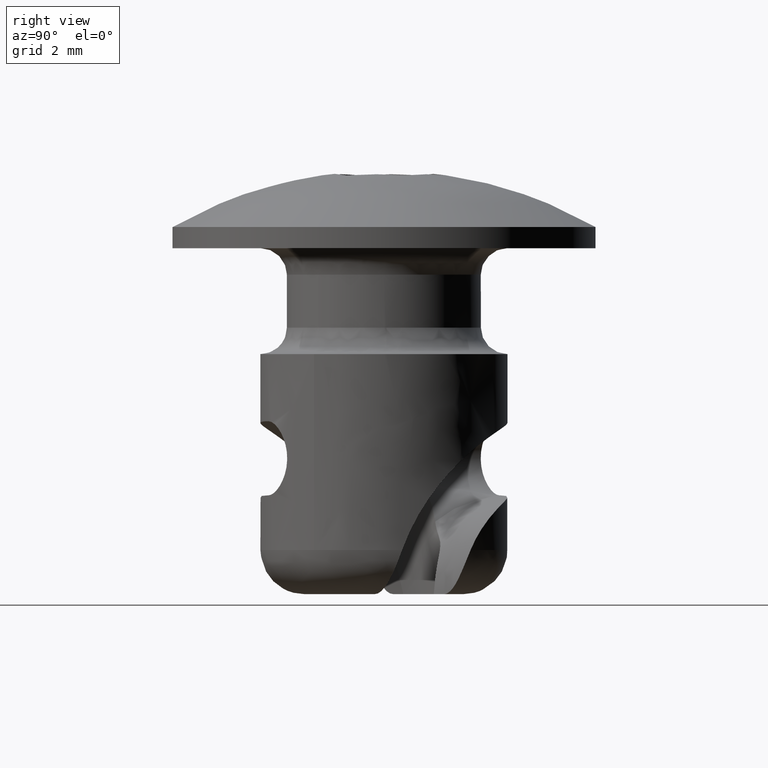
[diagram: clean part render]
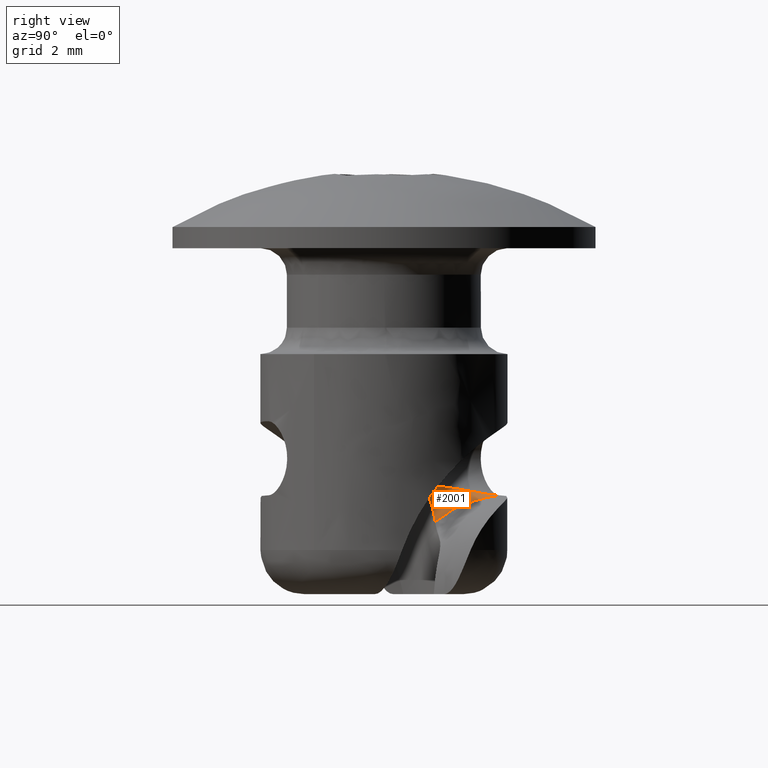
[diagram: same view with one face highlighted and labeled with its STEP entity id]
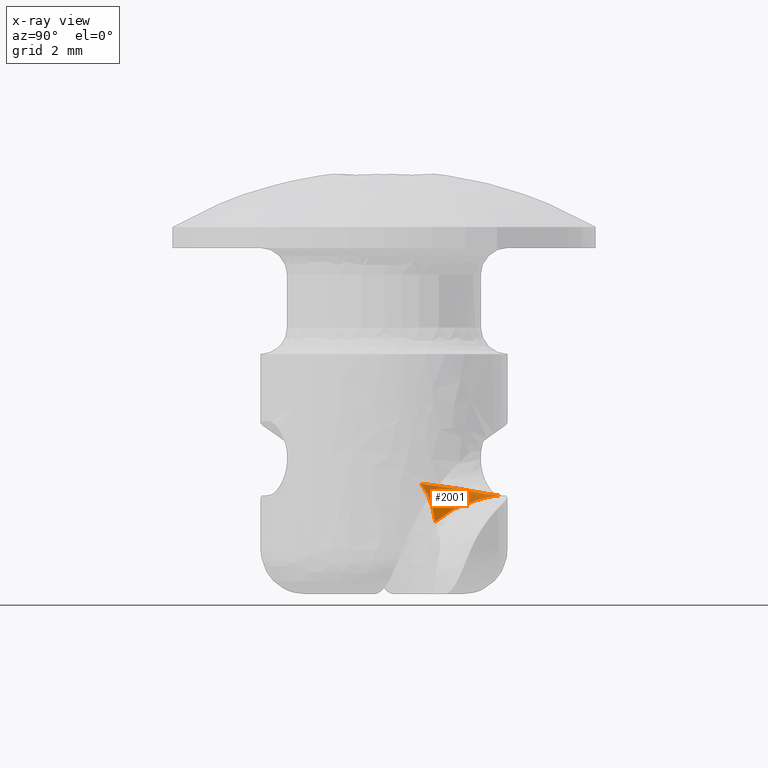
[diagram: x-ray of the same camera — body ghosted, the highlighted face saturated]
A machine part, right view. The second image highlights one B-rep face of the part: STEP entity #2001.
The next image is the same camera in x-ray: the body ghosted, the highlighted face saturated — about 10% of this face is hidden behind the body in this view.
In plain terms, the highlighted face is a freeform B-spline surface patch.
Its self-contained STEP definition (entity closure, byte-faithful):
#855=CARTESIAN_POINT('',(-0.672045298153660,1.451516563494296,-1.488970038982920));
#856=VERTEX_POINT('',#855);
#872=CARTESIAN_POINT('',(-1.212232091363172,1.044256353283640,-0.420718729356689));
#873=VERTEX_POINT('',#872);
#874=CARTESIAN_POINT('',(-0.672045298153660,1.451516563494296,-1.488970038982920));
#875=CARTESIAN_POINT('',(-0.685914227049318,1.445126067576757,-1.438556057472424));
#876=CARTESIAN_POINT('',(-0.716568376618162,1.430522021718328,-1.338916273838315));
#877=CARTESIAN_POINT('',(-0.770683985319542,1.402348551928514,-1.193377421310787));
#878=CARTESIAN_POINT('',(-0.832232117489249,1.366990956004324,-1.052320882063158));
#879=CARTESIAN_POINT('',(-0.900376026099111,1.323380838419215,-0.915845357115463));
#880=CARTESIAN_POINT('',(-0.974142754802714,1.270434115568713,-0.783914843066599));
#881=CARTESIAN_POINT('',(-1.052231645397192,1.206699727998528,-0.656698493933126));
#882=CARTESIAN_POINT('',(-1.132733177206144,1.132590003345547,-0.534578573007747));
#883=CARTESIAN_POINT('',(-1.185763895879432,1.073707062390380,-0.458608693711601));
#884=CARTESIAN_POINT('',(-1.212232091363172,1.044256353283640,-0.420718729356689));
#885=B_SPLINE_CURVE_WITH_KNOTS('',3,(#874,#875,#876,#877,#878,#879,#880,#881,#882,#883,#884),.UNSPECIFIED.,.F.,.U.,(4,1,1,1,1,1,1,1,4),(0.274487328514492,0.363590741908287,0.452425215500818,0.541266122305212,0.630535087466628,0.720647627196083,0.812007636217323,0.905002633807965,0.997706322431940),.UNSPECIFIED.);
#886=EDGE_CURVE('',#856,#873,#885,.T.);
#1090=CARTESIAN_POINT('',(-1.254288169733266,3.267531359792745,-0.743592999981045));
#1091=VERTEX_POINT('',#1090);
#1878=CARTESIAN_POINT('',(-0.672045298153660,1.451516563494296,-1.488970038982920));
#1879=CARTESIAN_POINT('',(-0.725018043586687,1.552880658211166,-1.409784171524347));
#1880=CARTESIAN_POINT('',(-0.810467332279812,1.716394895105065,-1.282067043244677));
#1881=CARTESIAN_POINT('',(-0.956720208116708,2.010279962952098,-1.102084542620141));
#1882=CARTESIAN_POINT('',(-1.100326551789266,2.357860284912444,-0.960042492175931));
#1883=CARTESIAN_POINT('',(-1.224037228723689,2.725527066451301,-0.844821912291983));
#1884=CARTESIAN_POINT('',(-1.276216384680858,3.008782386900770,-0.782431099786881));
#1885=CARTESIAN_POINT('',(-1.270817524979516,3.150823606796437,-0.761042154085632));
#1886=CARTESIAN_POINT('',(-1.263362547465741,3.212095274328525,-0.752013525163471));
#1887=CARTESIAN_POINT('',(-1.258392042728098,3.244371889486915,-0.747180575360182));
#1888=CARTESIAN_POINT('',(-1.255639688768302,3.259904304813440,-0.744774487912235));
#1889=CARTESIAN_POINT('',(-1.254288169733266,3.267531359792745,-0.743592999981045));
#1890=B_SPLINE_CURVE_WITH_KNOTS('',3,(#1878,#1879,#1880,#1881,#1882,#1883,#1884,#1885,#1886,#1887,#1888,#1889),.UNSPECIFIED.,.F.,.U.,(4,1,1,1,1,1,1,1,1,4),(0.000222147818129,0.199149641913625,0.321102078283582,0.534788884893557,0.772165064136862,0.899520041314767,0.952758658860349,0.977163544495235,0.988786360781260,1.0),.UNSPECIFIED.);
#1891=EDGE_CURVE('',#856,#1091,#1890,.T.);
#1897=CARTESIAN_POINT('',(-1.249660902780640,3.270828501655660,-0.744240882365390));
#1898=CARTESIAN_POINT('',(-1.251365059188532,3.270495467598860,-0.743505880832626));
#1899=CARTESIAN_POINT('',(-1.253911571138761,3.269468331464441,-0.743409314734532));
#1900=CARTESIAN_POINT('',(-1.255570864740820,3.269047010212999,-0.742698719426661));
#1901=CARTESIAN_POINT('',(-1.256590315220958,3.268675123167229,-0.740985931850151));
#1902=CARTESIAN_POINT('',(-1.257072874132290,3.268579475974837,-0.739723704139586));
#1903=CARTESIAN_POINT('',(-1.249546509216663,3.270095892036387,-0.744647983605658));
#1904=CARTESIAN_POINT('',(-1.251325786184934,3.269729866404274,-0.743781712204026));
#1905=CARTESIAN_POINT('',(-1.254099052620395,3.268625055636557,-0.743501157153204));
#1906=CARTESIAN_POINT('',(-1.255956216510638,3.268143292833722,-0.742723890388719));
#1907=CARTESIAN_POINT('',(-1.257104430254815,3.267734350416145,-0.740987534780917));
#1908=CARTESIAN_POINT('',(-1.257652797272609,3.267621576291097,-0.739730898124434));
#1909=CARTESIAN_POINT('',(-1.249432223760163,3.269363531887536,-0.745055168286291));
#1910=CARTESIAN_POINT('',(-1.251286416779037,3.268964399442211,-0.744057235302629));
#1911=CARTESIAN_POINT('',(-1.254287149061487,3.267781897886910,-0.743593513476443));
#1912=CARTESIAN_POINT('',(-1.256341174882598,3.267239742504733,-0.742748794479111));
#1913=CARTESIAN_POINT('',(-1.257619738980365,3.266793240111828,-0.740994081187013));
#1914=CARTESIAN_POINT('',(-1.258231024469758,3.266663985565658,-0.739731337724755));
#1915=CARTESIAN_POINT('',(-1.234775568119543,3.175554157531949,-0.797157405594725));
#1916=CARTESIAN_POINT('',(-1.246278620770217,3.171228686139221,-0.779291325933635));
#1917=CARTESIAN_POINT('',(-1.278226760642900,3.159749930155945,-0.755293165359192));
#1918=CARTESIAN_POINT('',(-1.306200051427997,3.150406420631799,-0.746035613443325));
#1919=CARTESIAN_POINT('',(-1.324401674782983,3.144335188760356,-0.740536358036234));
#1920=CARTESIAN_POINT('',(-1.334293580260118,3.141354979716706,-0.741560861336503));
#1921=CARTESIAN_POINT('',(-1.204968855050109,3.040710250991299,-0.868815622377969));
#1922=CARTESIAN_POINT('',(-1.225743819514052,3.032192379331561,-0.827230649416808));
#1923=CARTESIAN_POINT('',(-1.289996399584786,3.009535769101897,-0.769738868507030));
#1924=CARTESIAN_POINT('',(-1.344899502868480,2.989167907948444,-0.739556279444985));
#1925=CARTESIAN_POINT('',(-1.383126086015611,2.975637831860810,-0.725666723123872));
#1926=CARTESIAN_POINT('',(-1.402263821276795,2.968984319134836,-0.718423683188687));
#1927=CARTESIAN_POINT('',(-1.156336568290226,2.864249414704426,-0.956229108989650));
#1928=CARTESIAN_POINT('',(-1.185886437181248,2.852738571181552,-0.889977870562201));
#1929=CARTESIAN_POINT('',(-1.275385708257430,2.818829214703766,-0.782549536447432));
#1930=CARTESIAN_POINT('',(-1.358858610196757,2.787548900678083,-0.727661263553031));
#1931=CARTESIAN_POINT('',(-1.415338367231509,2.766648175071013,-0.698467942542556));
#1932=CARTESIAN_POINT('',(-1.443169546545404,2.756764932472609,-0.679976797374548));
#1933=CARTESIAN_POINT('',(-1.130095755162542,2.776618375097580,-0.997095171882755));
#1934=CARTESIAN_POINT('',(-1.162729430000901,2.763829225224157,-0.919482627789955));
#1935=CARTESIAN_POINT('',(-1.262690707761968,2.725784099182637,-0.789441048517010));
#1936=CARTESIAN_POINT('',(-1.356445356663020,2.690460687224318,-0.719521518407948));
#1937=CARTESIAN_POINT('',(-1.420797613725350,2.666601052551019,-0.679432862914388));
#1938=CARTESIAN_POINT('',(-1.453494789421653,2.654657726004746,-0.662727408446842));
#1939=CARTESIAN_POINT('',(-1.090394873579902,2.646242190917533,-1.055988591364308));
#1940=CARTESIAN_POINT('',(-1.127658170878471,2.631671813730133,-0.962311049276720));
#1941=CARTESIAN_POINT('',(-1.241141120584806,2.588135410530308,-0.800096922794295));
#1942=CARTESIAN_POINT('',(-1.349060098620221,2.547352013018542,-0.707755470122358));
#1943=CARTESIAN_POINT('',(-1.424114157624879,2.519178763848367,-0.654449723972981));
#1944=CARTESIAN_POINT('',(-1.463910401596340,2.504392932802003,-0.634787086600502));
#1945=CARTESIAN_POINT('',(-1.034823352527418,2.473912755982545,-1.129016561012181));
#1946=CARTESIAN_POINT('',(-1.076950197023804,2.457585882980669,-1.015509996742505));
#1947=CARTESIAN_POINT('',(-1.204653227440548,2.408318036310731,-0.815113268433115));
#1948=CARTESIAN_POINT('',(-1.328816999520229,2.361009396284274,-0.695906243312520));
#1949=CARTESIAN_POINT('',(-1.415355185129990,2.327837614295893,-0.625974861648608));
#1950=CARTESIAN_POINT('',(-1.462387855256649,2.309903838973851,-0.597776972312098));
#1951=CARTESIAN_POINT('',(-0.974698128257486,2.300723108466597,-1.196201303059681));
#1952=CARTESIAN_POINT('',(-1.020235461168459,2.283020544305290,-1.065806305283514));
#1953=CARTESIAN_POINT('',(-1.159554263784098,2.229691806888015,-0.832604982144141));
#1954=CARTESIAN_POINT('',(-1.294853925262615,2.178397803887558,-0.687887196687405));
#1955=CARTESIAN_POINT('',(-1.391130069770917,2.141910614869616,-0.603156306981562));
#1956=CARTESIAN_POINT('',(-1.442155218543219,2.122621469398553,-0.565965574810958));
#1957=CARTESIAN_POINT('',(-0.833076249997338,1.896931983931395,-1.349041700749390));
#1958=CARTESIAN_POINT('',(-0.885124882288983,1.876813528166208,-1.180771498978574));
#1959=CARTESIAN_POINT('',(-1.047837571790220,1.814582342086591,-0.873429165490200));
#1960=CARTESIAN_POINT('',(-1.206259538454497,1.753995946494596,-0.671267864077725));
#1961=CARTESIAN_POINT('',(-1.320500016628849,1.710312818044072,-0.549217362211885));
#1962=CARTESIAN_POINT('',(-1.382080944446179,1.686777027966789,-0.494287282708220));
#1963=CARTESIAN_POINT('',(-0.719543041871240,1.579785548614511,-1.457595675996182));
#1964=CARTESIAN_POINT('',(-0.774259742579317,1.558579080785989,-1.264412867099977));
#1965=CARTESIAN_POINT('',(-0.944787267851824,1.493106331425141,-0.905557764448225));
#1966=CARTESIAN_POINT('',(-1.112365097617816,1.428900689277439,-0.665632804586543));
#1967=CARTESIAN_POINT('',(-1.234338459097499,1.382214905043357,-0.518768033359829));
#1968=CARTESIAN_POINT('',(-1.300362936853214,1.356942860725518,-0.451410586664699));
#1969=CARTESIAN_POINT('',(-0.599940788994376,1.263778321159649,-1.555997770440476));
#1970=CARTESIAN_POINT('',(-0.657543991912416,1.241573642119332,-1.341072236810081));
#1971=CARTESIAN_POINT('',(-0.837051363305965,1.172895333511521,-0.938501226257776));
#1972=CARTESIAN_POINT('',(-1.013029658084568,1.105518729576799,-0.664982129222456));
#1973=CARTESIAN_POINT('',(-1.141337316762780,1.056396538591400,-0.495514661156376));
#1974=CARTESIAN_POINT('',(-1.210820452394461,1.029805819633846,-0.416642155956302));
#1982=(BOUNDED_SURFACE()B_SPLINE_SURFACE(2,3,((#1897,#1903,#1909,#1915,#1921,#1927,#1933,#1939,#1945,#1951,#1957,#1963,#1969),(#1898,#1904,#1910,#1916,#1922,#1928,#1934,#1940,#1946,#1952,#1958,#1964,#1970),(#1899,#1905,#1911,#1917,#1923,#1929,#1935,#1941,#1947,#1953,#1959,#1965,#1971),(#1900,#1906,#1912,#1918,#1924,#1930,#1936,#1942,#1948,#1954,#1960,#1966,#1972),(#1901,#1907,#1913,#1919,#1925,#1931,#1937,#1943,#1949,#1955,#1961,#1967,#1973),(#1902,#1908,#1914,#1920,#1926,#1932,#1938,#1944,#1950,#1956,#1962,#1968,#1974)),.UNSPECIFIED.,.F.,.F.,.U.)B_SPLINE_SURFACE_WITH_KNOTS((3,1,1,1,3),(4,2,1,1,2,1,2,4),(0.0,0.445280918412879,0.890561836825758,1.113202296032197,1.335842755238637),(0.0,0.003359376379008,0.439336530742452,0.657325107924174,0.875313685105896,1.311290839429646,1.747267993753396,3.362735755387455),.UNSPECIFIED.)GEOMETRIC_REPRESENTATION_ITEM()RATIONAL_B_SPLINE_SURFACE(((0.862870563000947,0.863008297775253,0.863146032549559,0.881158875136697,0.899973111452595,0.915848718600419,0.921847643338762,0.930240222510755,0.939161345740213,0.945158019956264,0.957724266759695,0.962562114812299,0.966690621116149),(0.846996298981250,0.847149978094130,0.847303657207010,0.867401687520658,0.888393881838451,0.906107267838523,0.912800635121185,0.922164749074462,0.932118591963506,0.938809448200783,0.952830378432220,0.958228261433956,0.962834688456424),(0.866886664523464,0.867020365467770,0.867154066412076,0.884639367968476,0.902902592884001,0.918313252086055,0.924136486678632,0.932283272892322,0.940943123725653,0.946764173706848,0.958962393600638,0.963658555890105,0.967666150879685),(0.920533608866330,0.920613426049914,0.920693243233497,0.931131670064264,0.942034503873541,0.951234404600196,0.954710776341166,0.959574268773550,0.964744052033935,0.968219119599167,0.975501248844477,0.978304777641843,0.980697243504165),(0.969207961823643,0.969238889788647,0.969269817753652,0.973314552048096,0.977539237101694,0.981104061052455,0.982451103114339,0.984335633700313,0.986338847401682,0.987685384114970,0.990507100296212,0.991593425779545,0.992520470522829),(1.0,1.0,1.0,1.0,1.0,1.000000000000000,1.0,1.0,1.0,1.0,1.0,1.0,1.0)))REPRESENTATION_ITEM('')SURFACE());
#1983=ORIENTED_EDGE('',*,*,#886,.F.);
#1984=ORIENTED_EDGE('',*,*,#1891,.T.);
#1985=CARTESIAN_POINT('',(-1.212232091363172,1.044256353283640,-0.420718729356689));
#1986=CARTESIAN_POINT('',(-1.245904875423024,1.170615874443181,-0.434849862008175));
#1987=CARTESIAN_POINT('',(-1.309937468916443,1.411022074607346,-0.461751113053650));
#1988=CARTESIAN_POINT('',(-1.384693890875117,1.755690910690367,-0.508877358550789));
#1989=CARTESIAN_POINT('',(-1.436942821573449,2.069164318187195,-0.557187885298295));
#1990=CARTESIAN_POINT('',(-1.462469947580261,2.355384804117950,-0.607395256241593));
#1991=CARTESIAN_POINT('',(-1.458564471974673,2.618692076078148,-0.657529446643123));
#1992=CARTESIAN_POINT('',(-1.423236316015403,2.858298094869634,-0.701336071339172));
#1993=CARTESIAN_POINT('',(-1.359187911052340,3.076363626207750,-0.735654828439315));
#1994=CARTESIAN_POINT('',(-1.288546041086628,3.205100322864367,-0.741000573574288));
#1995=CARTESIAN_POINT('',(-1.254288169733266,3.267531359792745,-0.743592999981045));
#1996=B_SPLINE_CURVE_WITH_KNOTS('',3,(#1985,#1986,#1987,#1988,#1989,#1990,#1991,#1992,#1993,#1994,#1995),.UNSPECIFIED.,.F.,.U.,(4,1,1,1,1,1,1,1,4),(0.000865624279911,0.171578267106154,0.325648816837564,0.462563684776893,0.588639611962077,0.703935727988626,0.809744933289193,0.907735545465209,1.0),.UNSPECIFIED.);
#1997=EDGE_CURVE('',#873,#1091,#1996,.T.);
#1998=ORIENTED_EDGE('',*,*,#1997,.F.);
#1999=EDGE_LOOP('',(#1983,#1984,#1998));
#2000=FACE_OUTER_BOUND('',#1999,.T.);
#2001=ADVANCED_FACE('',(#2000),#1982,.T.);